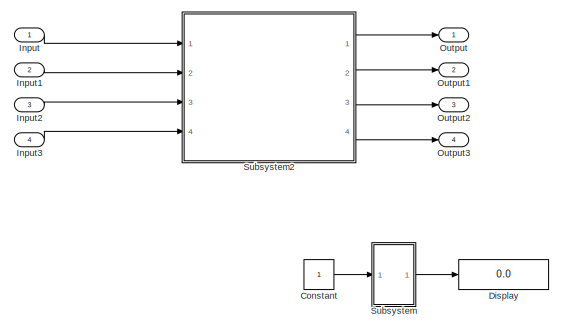
[diagram: root canvas - part 1/4, left side, full height]
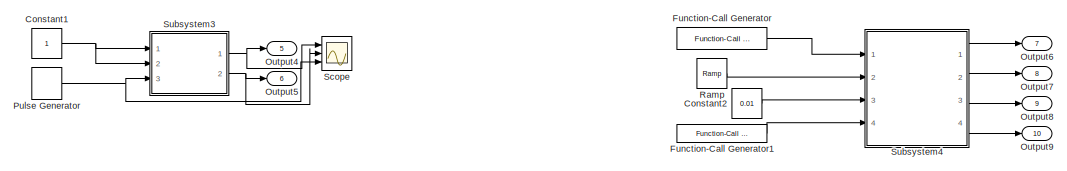
[diagram: root canvas - part 2/4, middle left region]
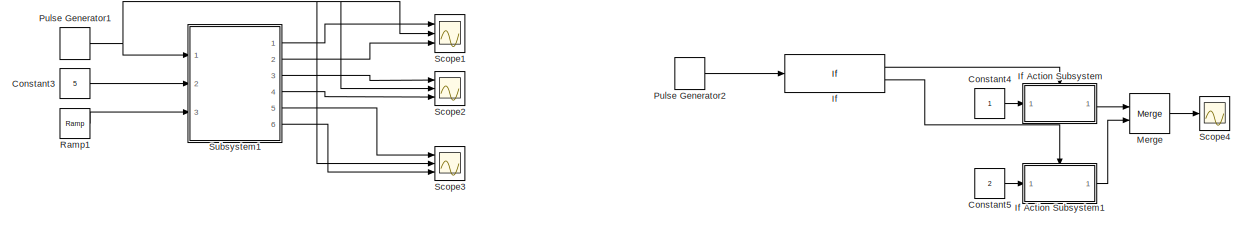
[diagram: root canvas - part 3/4, central region]
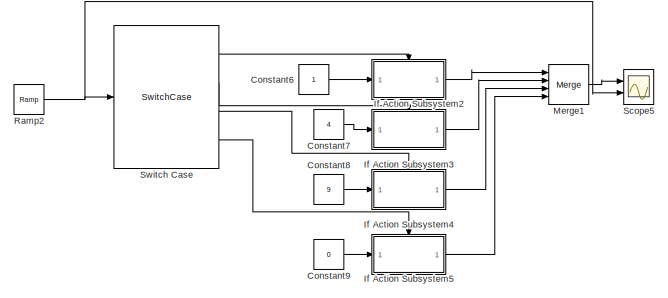
[diagram: root canvas - part 4/4, middle right region]
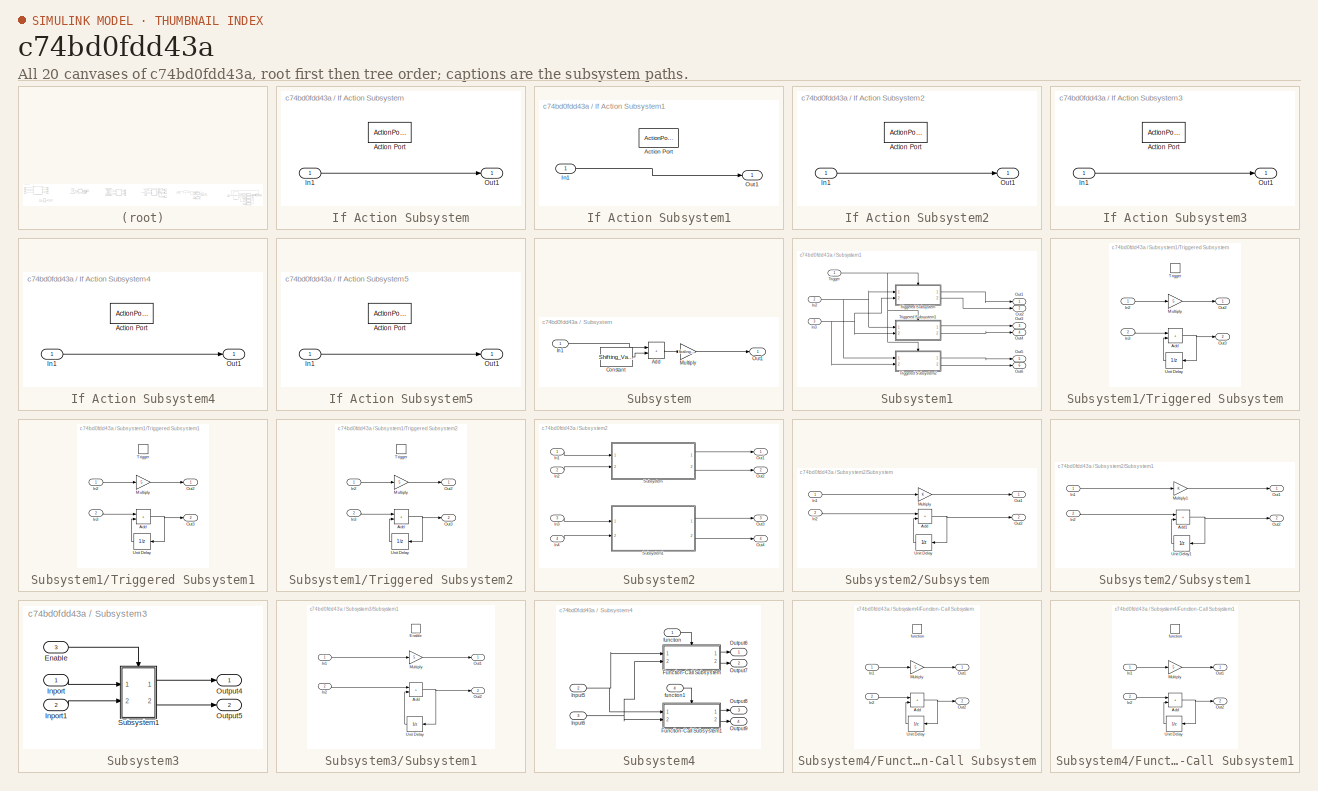
[diagram: thumbnail index - all 20 canvases of the model, root first then tree order]
MODEL slx_c74bd0fdd43a
KIND model
CONFIG AbsTol = auto
CONFIG EnableMultiTasking = off
CONFIG FixedStep = 0.01
CONFIG MaxStep = auto
CONFIG MinStep = auto
CONFIG RelTol = 1e-3
CONFIG SampleTimeConstraint = Unconstrained
CONFIG SolverName = FixedStepDiscrete
CONFIG StartTime = 0.0
CONFIG StopTime = 10.0
BLOCK [Constant] Constant
BLOCK [Constant] Constant1
BLOCK [Constant] Constant2
  Value = 0.01
BLOCK [Constant] Constant3
  Value = 5
BLOCK [Constant] Constant4
BLOCK [Constant] Constant5
  Value = 2
BLOCK [Constant] Constant6
BLOCK [Constant] Constant7
  Value = 4
BLOCK [Constant] Constant8
  Value = 9
BLOCK [Constant] Constant9
  Value = 0
BLOCK [Display] Display
  Decimation = 1
  Ports = [1]
BLOCK [Reference] Function-Call Generator  REF=simulink/Ports &
Subsystems/Function-Call
Generator
  Ports = [0, 1]
  SourceBlock = simulink/Ports &\nSubsystems/Function-Call\nGenerator
  SourceProductBaseCode = SL
  SourceType = Function-Call Generator
BLOCK [Reference] Function-Call Generator1  REF=simulink/Ports &
Subsystems/Function-Call
Generator
  Ports = [0, 1]
  SourceBlock = simulink/Ports &\nSubsystems/Function-Call\nGenerator
  SourceProductBaseCode = SL
  SourceType = Function-Call Generator
BLOCK [If] If
  Ports = [1, 2]
BLOCK [SubSystem] If Action Subsystem
  Ports = [1, 1, 0, 0, 0, 0, 0, 1]
  RequestExecContextInheritance = off
  TreatAsAtomicUnit = on
BLOCK [ActionPort] If Action Subsystem/Action Port
  ActionPortLabel = if(u1 > 0)
BLOCK [Inport] If Action Subsystem/In1
BLOCK [Outport] If Action Subsystem/Out1
BLOCK [SubSystem] If Action Subsystem1
  Ports = [1, 1, 0, 0, 0, 0, 0, 1]
  RequestExecContextInheritance = off
  TreatAsAtomicUnit = on
BLOCK [ActionPort] If Action Subsystem1/Action Port
  ActionPortLabel = else
BLOCK [Inport] If Action Subsystem1/In1
BLOCK [Outport] If Action Subsystem1/Out1
BLOCK [SubSystem] If Action Subsystem2
  Ports = [1, 1, 0, 0, 0, 0, 0, 1]
  RequestExecContextInheritance = off
  TreatAsAtomicUnit = on
BLOCK [ActionPort] If Action Subsystem2/Action Port
  ActionPortLabel = case [ 1 ]:
BLOCK [Inport] If Action Subsystem2/In1
BLOCK [Outport] If Action Subsystem2/Out1
BLOCK [SubSystem] If Action Subsystem3
  Ports = [1, 1, 0, 0, 0, 0, 0, 1]
  RequestExecContextInheritance = off
  TreatAsAtomicUnit = on
BLOCK [ActionPort] If Action Subsystem3/Action Port
  ActionPortLabel = case [ 2 ]:
BLOCK [Inport] If Action Subsystem3/In1
BLOCK [Outport] If Action Subsystem3/Out1
BLOCK [SubSystem] If Action Subsystem4
  Ports = [1, 1, 0, 0, 0, 0, 0, 1]
  RequestExecContextInheritance = off
  TreatAsAtomicUnit = on
BLOCK [ActionPort] If Action Subsystem4/Action Port
  ActionPortLabel = case [ 3 ]:
BLOCK [Inport] If Action Subsystem4/In1
BLOCK [Outport] If Action Subsystem4/Out1
BLOCK [SubSystem] If Action Subsystem5
  Ports = [1, 1, 0, 0, 0, 0, 0, 1]
  RequestExecContextInheritance = off
  TreatAsAtomicUnit = on
BLOCK [ActionPort] If Action Subsystem5/Action Port
  ActionPortLabel = default:
BLOCK [Inport] If Action Subsystem5/In1
BLOCK [Outport] If Action Subsystem5/Out1
BLOCK [Inport] Input
BLOCK [Inport] Input1
  Port = 2
BLOCK [Inport] Input2
  Port = 3
BLOCK [Inport] Input3
  Port = 4
BLOCK [Merge] Merge
  Ports = [2, 1]
BLOCK [Merge] Merge1
  Inputs = 4
  Ports = [4, 1]
BLOCK [Outport] Output
BLOCK [Outport] Output1
  Port = 2
BLOCK [Outport] Output2
  Port = 3
BLOCK [Outport] Output3
  Port = 4
BLOCK [Outport] Output4
  Port = 5
BLOCK [Outport] Output5
  Port = 6
BLOCK [Outport] Output6
  Port = 7
BLOCK [Outport] Output7
  Port = 8
BLOCK [Outport] Output8
  Port = 9
BLOCK [Outport] Output9
  Port = 10
BLOCK [DiscretePulseGenerator] Pulse Generator
  Period = 1
  Ports = [0, 1]
  PulseType = Time based
  PulseWidth = 50
BLOCK [DiscretePulseGenerator] Pulse Generator1
  Period = 1
  Ports = [0, 1]
  PulseType = Time based
  PulseWidth = 50
BLOCK [DiscretePulseGenerator] Pulse Generator2
  Amplitude = 2
  Period = 1
  Ports = [0, 1]
  PulseType = Time based
  PulseWidth = 50
BLOCK [Reference] Ramp  REF=simulink/Sources/Ramp
  Ports = [0, 1]
  SourceBlock = simulink/Sources/Ramp
  SourceProductBaseCode = SL
  SourceType = Ramp
BLOCK [Reference] Ramp1  REF=simulink/Sources/Ramp
  Ports = [0, 1]
  SourceBlock = simulink/Sources/Ramp
  SourceProductBaseCode = SL
  SourceType = Ramp
BLOCK [Reference] Ramp2  REF=simulink/Sources/Ramp
  Ports = [0, 1]
  SourceBlock = simulink/Sources/Ramp
  SourceProductBaseCode = SL
  SourceType = Ramp
BLOCK [Scope] Scope
  Floating = off
  NumInputPorts = 3
  Ports = [3]
  ScopeSpecificationString = Simulink.scopes.TimeScopeBlockCfg('CurrentConfiguration', extmgr.ConfigurationSet(extmgr.Configuration('Core','General UI',true),extmgr.Configuration('Core','Source UI',true),extmgr.Configuration('Sources','WiredSimulink',true),extmgr.Configuration('Visuals','Time Domain',true,'SerializedDisplays',{struct('MinYLimReal','4.00000','MaxYLimReal','6.00000','YLabelReal','','MinYLimMag','4.00000','MaxYL...<+2682ch>
BLOCK [Scope] Scope1
  Floating = off
  NumInputPorts = 3
  Ports = [3]
  ScopeSpecificationString = Simulink.scopes.TimeScopeBlockCfg('CurrentConfiguration', extmgr.ConfigurationSet(extmgr.Configuration('Core','General UI',true),extmgr.Configuration('Core','Source UI',true),extmgr.Configuration('Sources','WiredSimulink',true,'DataLoggingVariableName','ScopeData1'),extmgr.Configuration('Visuals','Time Domain',true,'SerializedDisplays',{struct('MinYLimReal','-6.875','MaxYLimReal','61.875','YLabelR...<+1397ch>
BLOCK [Scope] Scope2
  Floating = off
  NumInputPorts = 3
  Ports = [3]
  ScopeSpecificationString = Simulink.scopes.TimeScopeBlockCfg('CurrentConfiguration', extmgr.ConfigurationSet(extmgr.Configuration('Core','General UI',true),extmgr.Configuration('Core','Source UI',true),extmgr.Configuration('Sources','WiredSimulink',true,'DataLoggingVariableName','ScopeData2'),extmgr.Configuration('Visuals','Time Domain',true,'SerializedDisplays',{struct('MinYLimReal','-6.25','MaxYLimReal','56.25','YLabelRea...<+1391ch>
BLOCK [Scope] Scope3
  Floating = off
  NumInputPorts = 3
  Ports = [3]
  ScopeSpecificationString = Simulink.scopes.TimeScopeBlockCfg('CurrentConfiguration', extmgr.ConfigurationSet(extmgr.Configuration('Core','General UI',true),extmgr.Configuration('Core','Source UI',true),extmgr.Configuration('Sources','WiredSimulink',true,'DataLoggingVariableName','ScopeData3'),extmgr.Configuration('Visuals','Time Domain',true,'SerializedDisplays',{struct('MinYLimReal','-13.125','MaxYLimReal','118.125','YLabe...<+1403ch>
BLOCK [Scope] Scope4
  Floating = off
  NumInputPorts = 1
  Ports = [1]
  ScopeSpecificationString = Simulink.scopes.TimeScopeBlockCfg('CurrentConfiguration', extmgr.ConfigurationSet(extmgr.Configuration('Core','General UI',true),extmgr.Configuration('Core','Source UI',true),extmgr.Configuration('Sources','WiredSimulink',true,'DataLoggingVariableName','ScopeData1'),extmgr.Configuration('Visuals','Time Domain',true,'SerializedDisplays',{struct('MinYLimReal','0.875','MaxYLimReal','2.125','YLabelRea...<+1375ch>
BLOCK [Scope] Scope5
  Floating = off
  NumInputPorts = 2
  Ports = [2]
  ScopeSpecificationString = Simulink.scopes.TimeScopeBlockCfg('CurrentConfiguration', extmgr.ConfigurationSet(extmgr.Configuration('Core','General UI',true),extmgr.Configuration('Core','Source UI',true),extmgr.Configuration('Sources','WiredSimulink',true,'DataLoggingVariableName','ScopeData1'),extmgr.Configuration('Visuals','Time Domain',true,'SerializedDisplays',{struct('MinYLimReal','-1.25','MaxYLimReal','11.25','YLabelRea...<+1359ch>
BLOCK [SubSystem] Subsystem
  Ports = [1, 1]
  RequestExecContextInheritance = off
BLOCK [Sum] Subsystem/Add
  IconShape = rectangular
  Ports = [2, 1]
BLOCK [Constant] Subsystem/Constant
  Value = Shifting_Value
BLOCK [Inport] Subsystem/In1
BLOCK [Gain] Subsystem/Multiply
  Gain = Scaling_Value
BLOCK [Outport] Subsystem/Out1
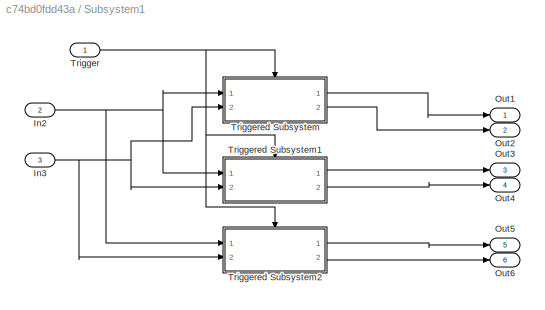
BLOCK [SubSystem] Subsystem1
  Ports = [3, 6]
  RequestExecContextInheritance = off
BLOCK [Inport] Subsystem1/In2
  Port = 2
BLOCK [Inport] Subsystem1/In3
  Port = 3
BLOCK [Outport] Subsystem1/Out1
BLOCK [Outport] Subsystem1/Out2
  Port = 2
BLOCK [Outport] Subsystem1/Out3
  Port = 3
BLOCK [Outport] Subsystem1/Out4
  Port = 4
BLOCK [Outport] Subsystem1/Out5
  Port = 5
BLOCK [Outport] Subsystem1/Out6
  Port = 6
BLOCK [Inport] Subsystem1/Trigger
BLOCK [SubSystem] Subsystem1/Triggered Subsystem
  Ports = [2, 2, 0, 1]
  RequestExecContextInheritance = off
  TreatAsAtomicUnit = on
BLOCK [Sum] Subsystem1/Triggered Subsystem/Add
  IconShape = rectangular
  Ports = [2, 1]
BLOCK [Inport] Subsystem1/Triggered Subsystem/In2
BLOCK [Inport] Subsystem1/Triggered Subsystem/In3
  Port = 2
BLOCK [Gain] Subsystem1/Triggered Subsystem/Multiply
  Gain = 5
BLOCK [Outport] Subsystem1/Triggered Subsystem/Out2
BLOCK [Outport] Subsystem1/Triggered Subsystem/Out3
  Port = 2
BLOCK [TriggerPort] Subsystem1/Triggered Subsystem/Trigger
  Ports = []
  StatesWhenEnabling = held
  VariantControl = Variant
BLOCK [UnitDelay] Subsystem1/Triggered Subsystem/Unit Delay
  HasFrameUpgradeWarning = on
  NameLocation = top
  SampleTime = -1
BLOCK [SubSystem] Subsystem1/Triggered Subsystem1
  Ports = [2, 2, 0, 1]
  RequestExecContextInheritance = off
  TreatAsAtomicUnit = on
BLOCK [Sum] Subsystem1/Triggered Subsystem1/Add
  IconShape = rectangular
  Ports = [2, 1]
BLOCK [Inport] Subsystem1/Triggered Subsystem1/In2
BLOCK [Inport] Subsystem1/Triggered Subsystem1/In3
  Port = 2
BLOCK [Gain] Subsystem1/Triggered Subsystem1/Multiply
  Gain = 5
BLOCK [Outport] Subsystem1/Triggered Subsystem1/Out2
BLOCK [Outport] Subsystem1/Triggered Subsystem1/Out3
  Port = 2
BLOCK [TriggerPort] Subsystem1/Triggered Subsystem1/Trigger
  Ports = []
  StatesWhenEnabling = held
  TriggerType = falling
  VariantControl = Variant
BLOCK [UnitDelay] Subsystem1/Triggered Subsystem1/Unit Delay
  HasFrameUpgradeWarning = on
  NameLocation = top
  SampleTime = -1
BLOCK [SubSystem] Subsystem1/Triggered Subsystem2
  Ports = [2, 2, 0, 1]
  RequestExecContextInheritance = off
  TreatAsAtomicUnit = on
BLOCK [Sum] Subsystem1/Triggered Subsystem2/Add
  IconShape = rectangular
  Ports = [2, 1]
BLOCK [Inport] Subsystem1/Triggered Subsystem2/In2
BLOCK [Inport] Subsystem1/Triggered Subsystem2/In3
  Port = 2
BLOCK [Gain] Subsystem1/Triggered Subsystem2/Multiply
  Gain = 5
BLOCK [Outport] Subsystem1/Triggered Subsystem2/Out2
BLOCK [Outport] Subsystem1/Triggered Subsystem2/Out3
  Port = 2
BLOCK [TriggerPort] Subsystem1/Triggered Subsystem2/Trigger
  Ports = []
  StatesWhenEnabling = held
  TriggerType = either
  VariantControl = Variant
BLOCK [UnitDelay] Subsystem1/Triggered Subsystem2/Unit Delay
  HasFrameUpgradeWarning = on
  NameLocation = top
  SampleTime = -1
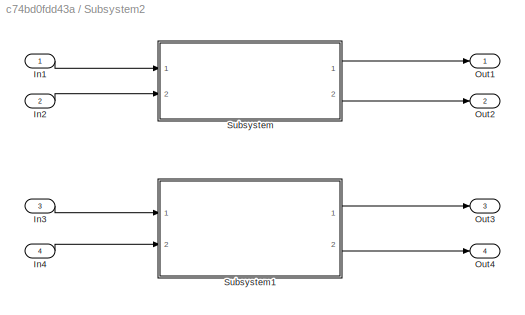
BLOCK [SubSystem] Subsystem2
  Ports = [4, 4]
  RequestExecContextInheritance = off
BLOCK [Inport] Subsystem2/In1
BLOCK [Inport] Subsystem2/In2
  Port = 2
BLOCK [Inport] Subsystem2/In3
  Port = 3
BLOCK [Inport] Subsystem2/In4
  Port = 4
BLOCK [Outport] Subsystem2/Out1
BLOCK [Outport] Subsystem2/Out2
  Port = 2
BLOCK [Outport] Subsystem2/Out3
  Port = 3
BLOCK [Outport] Subsystem2/Out4
  Port = 4
BLOCK [SubSystem] Subsystem2/Subsystem
  Ports = [2, 2]
  RequestExecContextInheritance = off
  TreatAsAtomicUnit = on
BLOCK [Sum] Subsystem2/Subsystem/Add
  IconShape = rectangular
  Ports = [2, 1]
BLOCK [Inport] Subsystem2/Subsystem/In1
BLOCK [Inport] Subsystem2/Subsystem/In2
  Port = 2
BLOCK [Gain] Subsystem2/Subsystem/Multiply
BLOCK [Outport] Subsystem2/Subsystem/Out1
BLOCK [Outport] Subsystem2/Subsystem/Out2
  Port = 2
BLOCK [UnitDelay] Subsystem2/Subsystem/Unit Delay
  HasFrameUpgradeWarning = on
  NameLocation = top
  SampleTime = -1
BLOCK [SubSystem] Subsystem2/Subsystem1
  Ports = [2, 2]
  RequestExecContextInheritance = off
BLOCK [Sum] Subsystem2/Subsystem1/Add1
  IconShape = rectangular
  Ports = [2, 1]
BLOCK [Inport] Subsystem2/Subsystem1/In1
BLOCK [Inport] Subsystem2/Subsystem1/In2
  Port = 2
BLOCK [Gain] Subsystem2/Subsystem1/Multiply1
BLOCK [Outport] Subsystem2/Subsystem1/Out1
BLOCK [Outport] Subsystem2/Subsystem1/Out2
  Port = 2
BLOCK [UnitDelay] Subsystem2/Subsystem1/Unit Delay1
  HasFrameUpgradeWarning = on
  NameLocation = top
  SampleTime = -1
BLOCK [SubSystem] Subsystem3
  Ports = [3, 2]
  RequestExecContextInheritance = off
BLOCK [Inport] Subsystem3/Enable
  Port = 3
BLOCK [Inport] Subsystem3/Inport
BLOCK [Inport] Subsystem3/Inport1
  Port = 2
BLOCK [Outport] Subsystem3/Output4
BLOCK [Outport] Subsystem3/Output5
  Port = 2
BLOCK [SubSystem] Subsystem3/Subsystem1
  Ports = [2, 2, 1]
  RequestExecContextInheritance = off
BLOCK [Sum] Subsystem3/Subsystem1/Add
  IconShape = rectangular
  Ports = [2, 1]
BLOCK [EnablePort] Subsystem3/Subsystem1/Enable
  Ports = []
  StatesWhenEnabling = reset
BLOCK [Inport] Subsystem3/Subsystem1/In1
BLOCK [Inport] Subsystem3/Subsystem1/In2
  Port = 2
BLOCK [Gain] Subsystem3/Subsystem1/Multiply
  Gain = 5
BLOCK [Outport] Subsystem3/Subsystem1/Out1
BLOCK [Outport] Subsystem3/Subsystem1/Out2
  Port = 2
BLOCK [UnitDelay] Subsystem3/Subsystem1/Unit Delay
  HasFrameUpgradeWarning = on
  NameLocation = top
  SampleTime = -1
BLOCK [SubSystem] Subsystem4
  Ports = [4, 4]
  RequestExecContextInheritance = off
BLOCK [SubSystem] Subsystem4/Function-Call Subsystem
  Ports = [2, 2, 0, 1]
  RequestExecContextInheritance = off
  TreatAsAtomicUnit = on
BLOCK [Sum] Subsystem4/Function-Call Subsystem/Add
  IconShape = rectangular
  Ports = [2, 1]
BLOCK [Inport] Subsystem4/Function-Call Subsystem/In1
BLOCK [Inport] Subsystem4/Function-Call Subsystem/In2
  Port = 2
BLOCK [Gain] Subsystem4/Function-Call Subsystem/Multiply
  Gain = 5
BLOCK [Outport] Subsystem4/Function-Call Subsystem/Out1
BLOCK [Outport] Subsystem4/Function-Call Subsystem/Out2
  Port = 2
BLOCK [UnitDelay] Subsystem4/Function-Call Subsystem/Unit Delay
  HasFrameUpgradeWarning = on
  NameLocation = top
  SampleTime = -1
BLOCK [TriggerPort] Subsystem4/Function-Call Subsystem/function
  Ports = []
  StatesWhenEnabling = held
  TriggerType = function-call
  VariantControl = Variant
BLOCK [SubSystem] Subsystem4/Function-Call Subsystem1
  Ports = [2, 2, 0, 1]
  RequestExecContextInheritance = off
  TreatAsAtomicUnit = on
BLOCK [Sum] Subsystem4/Function-Call Subsystem1/Add
  IconShape = rectangular
  Ports = [2, 1]
BLOCK [Inport] Subsystem4/Function-Call Subsystem1/In1
BLOCK [Inport] Subsystem4/Function-Call Subsystem1/In2
  Port = 2
BLOCK [Gain] Subsystem4/Function-Call Subsystem1/Multiply
  Gain = 5
BLOCK [Outport] Subsystem4/Function-Call Subsystem1/Out1
BLOCK [Outport] Subsystem4/Function-Call Subsystem1/Out2
  Port = 2
BLOCK [UnitDelay] Subsystem4/Function-Call Subsystem1/Unit Delay
  HasFrameUpgradeWarning = on
  NameLocation = top
  SampleTime = -1
BLOCK [TriggerPort] Subsystem4/Function-Call Subsystem1/function
  Ports = []
  StatesWhenEnabling = reset
  TriggerType = function-call
  VariantControl = Variant
BLOCK [Inport] Subsystem4/Input5
  Port = 2
BLOCK [Inport] Subsystem4/Input6
  Port = 3
BLOCK [Outport] Subsystem4/Output6
BLOCK [Outport] Subsystem4/Output7
  Port = 2
BLOCK [Outport] Subsystem4/Output8
  Port = 3
BLOCK [Outport] Subsystem4/Output9
  Port = 4
BLOCK [Inport] Subsystem4/function
BLOCK [Inport] Subsystem4/function1
  Port = 4
BLOCK [SwitchCase] Switch Case
  CaseConditions = {1,2,3}
  Ports = [1, 4]
NET Constant1:1 -> Subsystem3:1, Subsystem3:2
LINE Constant2:1 -> Subsystem4:3
LINE Constant3:1 -> Subsystem1:2
LINE Constant4:1 -> If Action Subsystem:1
LINE Constant5:1 -> If Action Subsystem1:1
LINE Constant6:1 -> If Action Subsystem2:1
LINE Constant7:1 -> If Action Subsystem3:1
LINE Constant8:1 -> If Action Subsystem4:1
LINE Constant9:1 -> If Action Subsystem5:1
LINE Constant:1 -> Subsystem:1
LINE Function-Call Generator1:1 -> Subsystem4:4
LINE Function-Call Generator:1 -> Subsystem4:1
LINE If Action Subsystem/In1:1 -> If Action Subsystem/Out1:1
LINE If Action Subsystem1/In1:1 -> If Action Subsystem1/Out1:1
LINE If Action Subsystem1:1 -> Merge:2
LINE If Action Subsystem2/In1:1 -> If Action Subsystem2/Out1:1
LINE If Action Subsystem2:1 -> Merge1:1
LINE If Action Subsystem3/In1:1 -> If Action Subsystem3/Out1:1
LINE If Action Subsystem3:1 -> Merge1:2
LINE If Action Subsystem4/In1:1 -> If Action Subsystem4/Out1:1
LINE If Action Subsystem4:1 -> Merge1:3
LINE If Action Subsystem5/In1:1 -> If Action Subsystem5/Out1:1
LINE If Action Subsystem5:1 -> Merge1:4
LINE If Action Subsystem:1 -> Merge:1
LINE If:1 -> If Action Subsystem:ifaction
LINE If:2 -> If Action Subsystem1:ifaction
LINE Input1:1 -> Subsystem2:2
LINE Input2:1 -> Subsystem2:3
LINE Input3:1 -> Subsystem2:4
LINE Input:1 -> Subsystem2:1
LINE Merge1:1 -> Scope5:1
LINE Merge:1 -> Scope4:1
NET Pulse Generator1:1 -> Scope1:2, Scope2:2, Scope3:2, Subsystem1:1
LINE Pulse Generator2:1 -> If:1
NET Pulse Generator:1 -> Scope:3, Subsystem3:3
LINE Ramp1:1 -> Subsystem1:3
NET Ramp2:1 -> Scope5:2, Switch Case:1
LINE Ramp:1 -> Subsystem4:2
LINE Subsystem/Add:1 -> Subsystem/Multiply:1
LINE Subsystem/Constant:1 -> Subsystem/Add:2
LINE Subsystem/In1:1 -> Subsystem/Add:1
LINE Subsystem/Multiply:1 -> Subsystem/Out1:1
NET Subsystem1/In2:1 -> Subsystem1/Triggered Subsystem1:1, Subsystem1/Triggered Subsystem2:1, Subsystem1/Triggered Subsystem:1
NET Subsystem1/In3:1 -> Subsystem1/Triggered Subsystem1:2, Subsystem1/Triggered Subsystem2:2, Subsystem1/Triggered Subsystem:2
NET Subsystem1/Trigger:1 -> Subsystem1/Triggered Subsystem1:trigger, Subsystem1/Triggered Subsystem2:trigger, Subsystem1/Triggered Subsystem:trigger
NET Subsystem1/Triggered Subsystem/Add:1 -> Subsystem1/Triggered Subsystem/Out3:1, Subsystem1/Triggered Subsystem/Unit Delay:1
LINE Subsystem1/Triggered Subsystem/In2:1 -> Subsystem1/Triggered Subsystem/Multiply:1
LINE Subsystem1/Triggered Subsystem/In3:1 -> Subsystem1/Triggered Subsystem/Add:1
LINE Subsystem1/Triggered Subsystem/Multiply:1 -> Subsystem1/Triggered Subsystem/Out2:1
LINE Subsystem1/Triggered Subsystem/Unit Delay:1 -> Subsystem1/Triggered Subsystem/Add:2
NET Subsystem1/Triggered Subsystem1/Add:1 -> Subsystem1/Triggered Subsystem1/Out3:1, Subsystem1/Triggered Subsystem1/Unit Delay:1
LINE Subsystem1/Triggered Subsystem1/In2:1 -> Subsystem1/Triggered Subsystem1/Multiply:1
LINE Subsystem1/Triggered Subsystem1/In3:1 -> Subsystem1/Triggered Subsystem1/Add:1
LINE Subsystem1/Triggered Subsystem1/Multiply:1 -> Subsystem1/Triggered Subsystem1/Out2:1
LINE Subsystem1/Triggered Subsystem1/Unit Delay:1 -> Subsystem1/Triggered Subsystem1/Add:2
LINE Subsystem1/Triggered Subsystem1:1 -> Subsystem1/Out3:1
LINE Subsystem1/Triggered Subsystem1:2 -> Subsystem1/Out4:1
NET Subsystem1/Triggered Subsystem2/Add:1 -> Subsystem1/Triggered Subsystem2/Out3:1, Subsystem1/Triggered Subsystem2/Unit Delay:1
LINE Subsystem1/Triggered Subsystem2/In2:1 -> Subsystem1/Triggered Subsystem2/Multiply:1
LINE Subsystem1/Triggered Subsystem2/In3:1 -> Subsystem1/Triggered Subsystem2/Add:1
LINE Subsystem1/Triggered Subsystem2/Multiply:1 -> Subsystem1/Triggered Subsystem2/Out2:1
LINE Subsystem1/Triggered Subsystem2/Unit Delay:1 -> Subsystem1/Triggered Subsystem2/Add:2
LINE Subsystem1/Triggered Subsystem2:1 -> Subsystem1/Out5:1
LINE Subsystem1/Triggered Subsystem2:2 -> Subsystem1/Out6:1
LINE Subsystem1/Triggered Subsystem:1 -> Subsystem1/Out1:1
LINE Subsystem1/Triggered Subsystem:2 -> Subsystem1/Out2:1
LINE Subsystem1:1 -> Scope1:1
LINE Subsystem1:2 -> Scope1:3
LINE Subsystem1:3 -> Scope2:1
LINE Subsystem1:4 -> Scope2:3
LINE Subsystem1:5 -> Scope3:1
LINE Subsystem1:6 -> Scope3:3
LINE Subsystem2/In1:1 -> Subsystem2/Subsystem:1
LINE Subsystem2/In2:1 -> Subsystem2/Subsystem:2
LINE Subsystem2/In3:1 -> Subsystem2/Subsystem1:1
LINE Subsystem2/In4:1 -> Subsystem2/Subsystem1:2
NET Subsystem2/Subsystem/Add:1 -> Subsystem2/Subsystem/Out2:1, Subsystem2/Subsystem/Unit Delay:1
LINE Subsystem2/Subsystem/In1:1 -> Subsystem2/Subsystem/Multiply:1
LINE Subsystem2/Subsystem/In2:1 -> Subsystem2/Subsystem/Add:1
LINE Subsystem2/Subsystem/Multiply:1 -> Subsystem2/Subsystem/Out1:1
LINE Subsystem2/Subsystem/Unit Delay:1 -> Subsystem2/Subsystem/Add:2
NET Subsystem2/Subsystem1/Add1:1 -> Subsystem2/Subsystem1/Out2:1, Subsystem2/Subsystem1/Unit Delay1:1
LINE Subsystem2/Subsystem1/In1:1 -> Subsystem2/Subsystem1/Multiply1:1
LINE Subsystem2/Subsystem1/In2:1 -> Subsystem2/Subsystem1/Add1:1
LINE Subsystem2/Subsystem1/Multiply1:1 -> Subsystem2/Subsystem1/Out1:1
LINE Subsystem2/Subsystem1/Unit Delay1:1 -> Subsystem2/Subsystem1/Add1:2
LINE Subsystem2/Subsystem1:1 -> Subsystem2/Out3:1
LINE Subsystem2/Subsystem1:2 -> Subsystem2/Out4:1
LINE Subsystem2/Subsystem:1 -> Subsystem2/Out1:1
LINE Subsystem2/Subsystem:2 -> Subsystem2/Out2:1
LINE Subsystem2:1 -> Output:1
LINE Subsystem2:2 -> Output1:1
LINE Subsystem2:3 -> Output2:1
LINE Subsystem2:4 -> Output3:1
LINE Subsystem3/Enable:1 -> Subsystem3/Subsystem1:enable
LINE Subsystem3/Inport1:1 -> Subsystem3/Subsystem1:2
LINE Subsystem3/Inport:1 -> Subsystem3/Subsystem1:1
NET Subsystem3/Subsystem1/Add:1 -> Subsystem3/Subsystem1/Out2:1, Subsystem3/Subsystem1/Unit Delay:1
LINE Subsystem3/Subsystem1/In1:1 -> Subsystem3/Subsystem1/Multiply:1
LINE Subsystem3/Subsystem1/In2:1 -> Subsystem3/Subsystem1/Add:1
LINE Subsystem3/Subsystem1/Multiply:1 -> Subsystem3/Subsystem1/Out1:1
LINE Subsystem3/Subsystem1/Unit Delay:1 -> Subsystem3/Subsystem1/Add:2
LINE Subsystem3/Subsystem1:1 -> Subsystem3/Output4:1
LINE Subsystem3/Subsystem1:2 -> Subsystem3/Output5:1
NET Subsystem3:1 -> Output4:1, Scope:1
NET Subsystem3:2 -> Output5:1, Scope:2
NET Subsystem4/Function-Call Subsystem/Add:1 -> Subsystem4/Function-Call Subsystem/Out2:1, Subsystem4/Function-Call Subsystem/Unit Delay:1
LINE Subsystem4/Function-Call Subsystem/In1:1 -> Subsystem4/Function-Call Subsystem/Multiply:1
LINE Subsystem4/Function-Call Subsystem/In2:1 -> Subsystem4/Function-Call Subsystem/Add:1
LINE Subsystem4/Function-Call Subsystem/Multiply:1 -> Subsystem4/Function-Call Subsystem/Out1:1
LINE Subsystem4/Function-Call Subsystem/Unit Delay:1 -> Subsystem4/Function-Call Subsystem/Add:2
NET Subsystem4/Function-Call Subsystem1/Add:1 -> Subsystem4/Function-Call Subsystem1/Out2:1, Subsystem4/Function-Call Subsystem1/Unit Delay:1
LINE Subsystem4/Function-Call Subsystem1/In1:1 -> Subsystem4/Function-Call Subsystem1/Multiply:1
LINE Subsystem4/Function-Call Subsystem1/In2:1 -> Subsystem4/Function-Call Subsystem1/Add:1
LINE Subsystem4/Function-Call Subsystem1/Multiply:1 -> Subsystem4/Function-Call Subsystem1/Out1:1
LINE Subsystem4/Function-Call Subsystem1/Unit Delay:1 -> Subsystem4/Function-Call Subsystem1/Add:2
LINE Subsystem4/Function-Call Subsystem1:1 -> Subsystem4/Output8:1
LINE Subsystem4/Function-Call Subsystem1:2 -> Subsystem4/Output9:1
LINE Subsystem4/Function-Call Subsystem:1 -> Subsystem4/Output6:1
LINE Subsystem4/Function-Call Subsystem:2 -> Subsystem4/Output7:1
NET Subsystem4/Input5:1 -> Subsystem4/Function-Call Subsystem1:1, Subsystem4/Function-Call Subsystem:1
NET Subsystem4/Input6:1 -> Subsystem4/Function-Call Subsystem1:2, Subsystem4/Function-Call Subsystem:2
LINE Subsystem4/function1:1 -> Subsystem4/Function-Call Subsystem1:trigger
LINE Subsystem4/function:1 -> Subsystem4/Function-Call Subsystem:trigger
LINE Subsystem4:1 -> Output6:1
LINE Subsystem4:2 -> Output7:1
LINE Subsystem4:3 -> Output8:1
LINE Subsystem4:4 -> Output9:1
LINE Subsystem:1 -> Display:1
LINE Switch Case:1 -> If Action Subsystem2:ifaction
LINE Switch Case:2 -> If Action Subsystem3:ifaction
LINE Switch Case:3 -> If Action Subsystem4:ifaction
LINE Switch Case:4 -> If Action Subsystem5:ifaction
note: NET lines group one-source signal fan-out (src -> all destinations, sorted); 1:1 wires keep LINE
